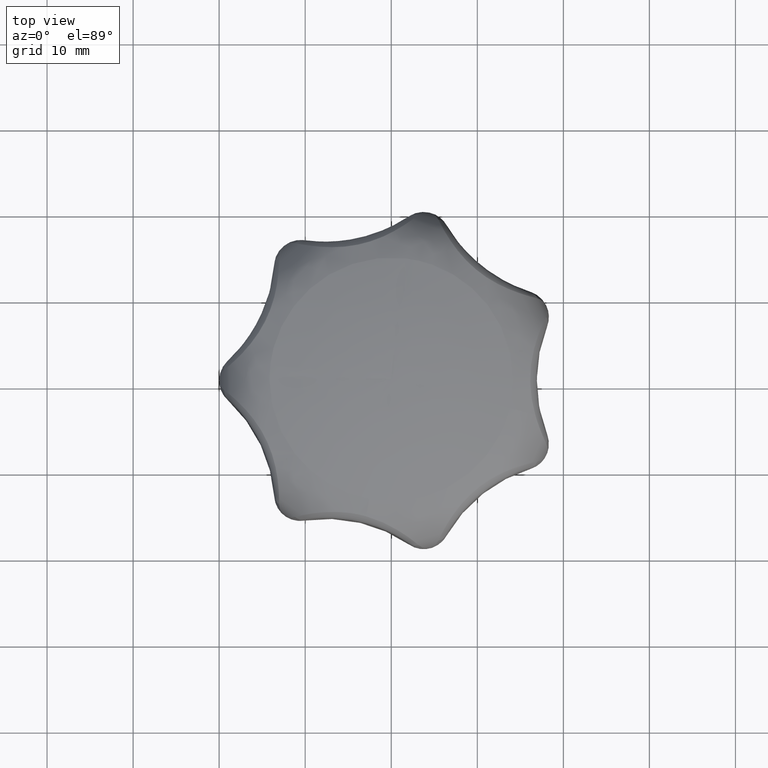
[diagram: clean part render]
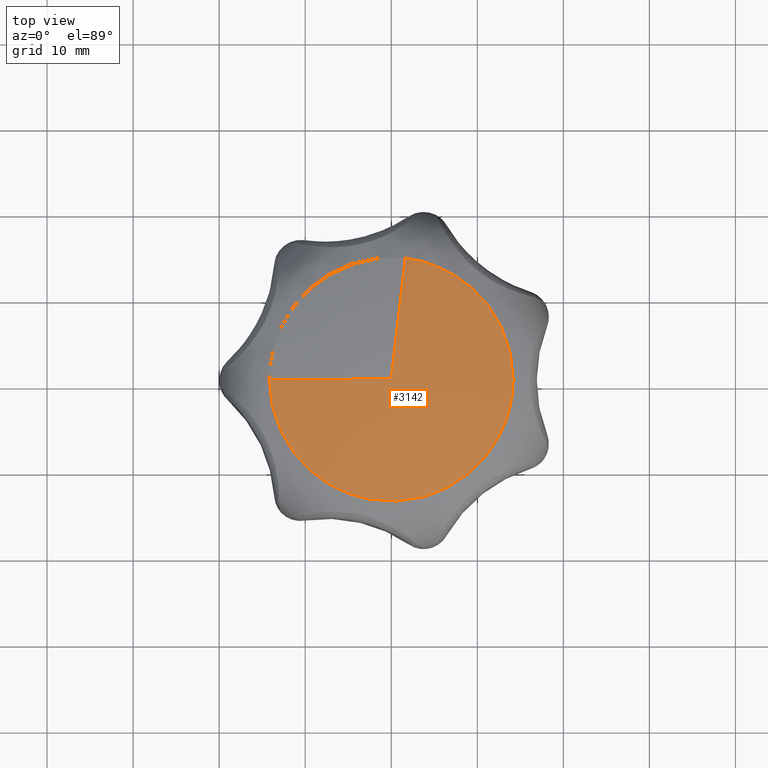
[diagram: same view with one face highlighted and labeled with its STEP entity id]
A machine part, top view. The second image highlights one B-rep face of the part: STEP entity #3142.
In plain terms, the highlighted face is a freeform B-spline surface patch.
Its self-contained STEP definition (entity closure, byte-faithful):
#2155=CARTESIAN_POINT('',(-2.555872080191708,-13.924026211694240,23.484274901219809));
#2156=VERTEX_POINT('',#2155);
#2157=CARTESIAN_POINT('',(13.755059415906590,-3.348035727709375,23.484274579114441));
#2158=VERTEX_POINT('',#2157);
#2159=CARTESIAN_POINT('',(-2.555872080191707,-13.924026211694233,23.484274901219809));
#2160=CARTESIAN_POINT('',(-1.288522058761201,-14.156659255858118,23.484275067383390));
#2161=CARTESIAN_POINT('',(0.000001978750909,-14.156659255858120,23.484275026593110));
#2162=CARTESIAN_POINT('',(11.124198166573278,-14.156659255858116,23.484274674438943));
#2163=CARTESIAN_POINT('',(13.755059415906590,-3.348035727709375,23.484274579114441));
#2171=(BOUNDED_CURVE()B_SPLINE_CURVE(2,(#2159,#2160,#2161,#2162,#2163),.UNSPECIFIED.,.F.,.U.)B_SPLINE_CURVE_WITH_KNOTS((3,2,3),(0.218989093635942,0.250000000000000,0.459598322152084),.UNSPECIFIED.)CURVE()GEOMETRIC_REPRESENTATION_ITEM()RATIONAL_B_SPLINE_CURVE((0.936350317603224,0.963668463266834,1.0,0.754440291067909,0.920631805978381))REPRESENTATION_ITEM(''));
#2172=EDGE_CURVE('',#2156,#2158,#2171,.T.);
#2450=CARTESIAN_POINT('',(-14.156655298356300,0.0,23.484275474744681));
#2451=VERTEX_POINT('',#2450);
#2452=CARTESIAN_POINT('',(-14.156655298356300,0.0,23.484275474744681));
#2453=CARTESIAN_POINT('',(-14.156655298356309,-11.794602719198927,23.484275474744685));
#2454=CARTESIAN_POINT('',(-2.555872080191708,-13.924026211694237,23.484274901219816));
#2462=(BOUNDED_CURVE()B_SPLINE_CURVE(2,(#2452,#2453,#2454),.UNSPECIFIED.,.F.,.U.)B_SPLINE_CURVE_WITH_KNOTS((3,3),(0.0,0.218989093635942),.UNSPECIFIED.)CURVE()GEOMETRIC_REPRESENTATION_ITEM()RATIONAL_B_SPLINE_CURVE((1.0,0.743438317919714,0.936350317603224))REPRESENTATION_ITEM(''));
#2463=EDGE_CURVE('',#2451,#2156,#2462,.T.);
#2465=CARTESIAN_POINT('',(1.634552423069075,14.061897552732781,23.484292791448969));
#2466=VERTEX_POINT('',#2465);
#2482=CARTESIAN_POINT('',(14.156659255858120,0.0,23.484274578441550));
#2483=VERTEX_POINT('',#2482);
#2484=CARTESIAN_POINT('',(14.156659255858120,0.0,23.484274578441550));
#2485=CARTESIAN_POINT('',(14.156654613261113,12.606371143016760,23.484283684945257));
#2486=CARTESIAN_POINT('',(1.634552423069075,14.061897552732784,23.484292791448965));
#2494=(BOUNDED_CURVE()B_SPLINE_CURVE(2,(#2484,#2485,#2486),.UNSPECIFIED.,.F.,.U.)B_SPLINE_CURVE_WITH_KNOTS((3,3),(0.500000000000000,0.730000313272835),.UNSPECIFIED.)CURVE()GEOMETRIC_REPRESENTATION_ITEM()RATIONAL_B_SPLINE_CURVE((1.0,0.730537871669667,0.956886734788466))REPRESENTATION_ITEM(''));
#2495=EDGE_CURVE('',#2483,#2466,#2494,.T.);
#2497=CARTESIAN_POINT('',(13.755059415906594,-3.348035727709375,23.484274579114444));
#2498=CARTESIAN_POINT('',(14.156659255858116,-1.698103998237507,23.484274578441550));
#2499=CARTESIAN_POINT('',(14.156659255858120,0.0,23.484274578441550));
#2507=(BOUNDED_CURVE()B_SPLINE_CURVE(2,(#2497,#2498,#2499),.UNSPECIFIED.,.F.,.U.)B_SPLINE_CURVE_WITH_KNOTS((3,3),(0.459598322152084,0.500000000000000),.UNSPECIFIED.)CURVE()GEOMETRIC_REPRESENTATION_ITEM()RATIONAL_B_SPLINE_CURVE((0.920631805978382,0.952666490118639,1.0))REPRESENTATION_ITEM(''));
#2508=EDGE_CURVE('',#2158,#2483,#2507,.T.);
#3079=CARTESIAN_POINT('',(1.716594946472738,14.767454876726807,23.318985372251955));
#3080=CARTESIAN_POINT('',(0.870195925212017,7.486086968789796,25.070855692663613));
#3081=CARTESIAN_POINT('',(1.777650E-015,1.361802E-014,25.000000340533870));
#3082=CARTESIAN_POINT('',(14.866890116847509,13.238841420818023,23.318985372251959));
#3083=CARTESIAN_POINT('',(7.536493816924422,6.711184768774954,25.070855692663606));
#3084=CARTESIAN_POINT('',(1.539567E-014,0.0,25.000000340533866));
#3085=CARTESIAN_POINT('',(14.866890116847506,0.0,23.318985372251969));
#3086=CARTESIAN_POINT('',(7.536493816924422,0.0,25.070855692663606));
#3087=CARTESIAN_POINT('',(1.539567E-014,0.0,25.000000340533870));
#3088=CARTESIAN_POINT('',(14.866890116847490,-14.866890116847500,23.318985372251955));
#3089=CARTESIAN_POINT('',(7.536493816924410,-7.536493816924422,25.070855692663606));
#3090=CARTESIAN_POINT('',(0.0,-1.539567E-014,25.000000340533862));
#3091=CARTESIAN_POINT('',(0.0,-14.866890116847506,23.318985372251969));
#3092=CARTESIAN_POINT('',(0.0,-7.536493816924422,25.070855692663606));
#3093=CARTESIAN_POINT('',(0.0,-1.539567E-014,25.000000340533870));
#3094=CARTESIAN_POINT('',(-14.866890116847500,-14.866890116847490,23.318985372251955));
#3095=CARTESIAN_POINT('',(-7.536493816924422,-7.536493816924410,25.070855692663606));
#3096=CARTESIAN_POINT('',(-1.539567E-014,0.0,25.000000340533862));
#3097=CARTESIAN_POINT('',(-14.866890116847506,0.0,23.318985372251969));
#3098=CARTESIAN_POINT('',(-7.536493816924422,0.0,25.070855692663606));
#3099=CARTESIAN_POINT('',(-1.539567E-014,0.0,25.000000340533870));
#3107=(BOUNDED_SURFACE()B_SPLINE_SURFACE(2,2,((#3079,#3082,#3085,#3088,#3091,#3094,#3097),(#3080,#3083,#3086,#3089,#3092,#3095,#3098),(#3081,#3084,#3087,#3090,#3093,#3096,#3099)),.UNSPECIFIED.,.F.,.F.,.U.)B_SPLINE_SURFACE_WITH_KNOTS((3,3),(3,2,2,3),(0.921306894546747,1.0),(0.270000010728836,0.500000000000000,0.750000000000000,1.0),.UNSPECIFIED.)GEOMETRIC_REPRESENTATION_ITEM()RATIONAL_B_SPLINE_SURFACE(((0.910103716532069,0.694822068765490,0.951109770865406,0.672536168631712,0.951109770865406,0.672536168631712,0.951109770865406),(0.926266177006412,0.707161359353066,0.968000454640381,0.684479685667875,0.968000454640381,0.684479685667875,0.968000454640381),(0.956886097073711,0.730538251261237,1.0,0.707106781186548,1.0,0.707106781186548,1.0)))REPRESENTATION_ITEM('')SURFACE());
#3108=ORIENTED_EDGE('',*,*,#2495,.T.);
#3109=CARTESIAN_POINT('',(-4.632923E-015,7.425573E-015,25.000000340533870));
#3110=VERTEX_POINT('',#3109);
#3111=CARTESIAN_POINT('',(1.634552423069074,14.061897552732782,23.484292791448969));
#3112=CARTESIAN_POINT('',(0.827478100504168,7.118713230433150,25.067378507999649));
#3113=CARTESIAN_POINT('',(-4.632923E-015,7.425573E-015,25.000000340533859));
#3121=(BOUNDED_CURVE()B_SPLINE_CURVE(2,(#3111,#3112,#3113),.UNSPECIFIED.,.F.,.U.)B_SPLINE_CURVE_WITH_KNOTS((3,3),(0.925051015502926,1.0),.UNSPECIFIED.)CURVE()GEOMETRIC_REPRESENTATION_ITEM()RATIONAL_B_SPLINE_CURVE((0.911674444461200,0.927723055532847,0.956886118190660))REPRESENTATION_ITEM(''));
#3122=EDGE_CURVE('',#2466,#3110,#3121,.T.);
#3123=ORIENTED_EDGE('',*,*,#3122,.T.);
#3124=CARTESIAN_POINT('',(-14.156655298356302,0.0,23.484275474744681));
#3125=CARTESIAN_POINT('',(-7.166684555386967,0.0,25.067378881551750));
#3126=CARTESIAN_POINT('',(-1.539567E-014,0.0,25.000000340533870));
#3134=(BOUNDED_CURVE()B_SPLINE_CURVE(2,(#3124,#3125,#3126),.UNSPECIFIED.,.F.,.U.)B_SPLINE_CURVE_WITH_KNOTS((3,3),(0.925050612676142,1.0),.UNSPECIFIED.)CURVE()GEOMETRIC_REPRESENTATION_ITEM()RATIONAL_B_SPLINE_CURVE((0.952751068928809,0.969522789759896,1.0))REPRESENTATION_ITEM(''));
#3135=EDGE_CURVE('',#2451,#3110,#3134,.T.);
#3136=ORIENTED_EDGE('',*,*,#3135,.F.);
#3137=ORIENTED_EDGE('',*,*,#2463,.T.);
#3138=ORIENTED_EDGE('',*,*,#2172,.T.);
#3139=ORIENTED_EDGE('',*,*,#2508,.T.);
#3140=EDGE_LOOP('',(#3108,#3123,#3136,#3137,#3138,#3139));
#3141=FACE_OUTER_BOUND('',#3140,.T.);
#3142=ADVANCED_FACE('',(#3141),#3107,.T.);